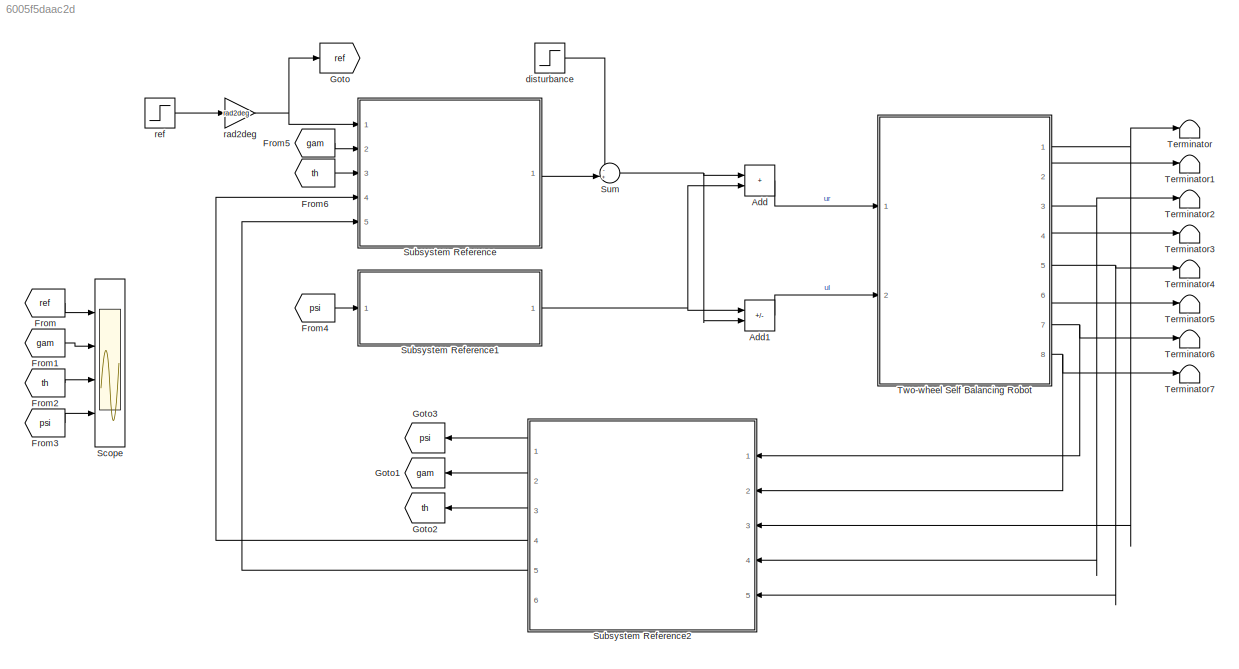
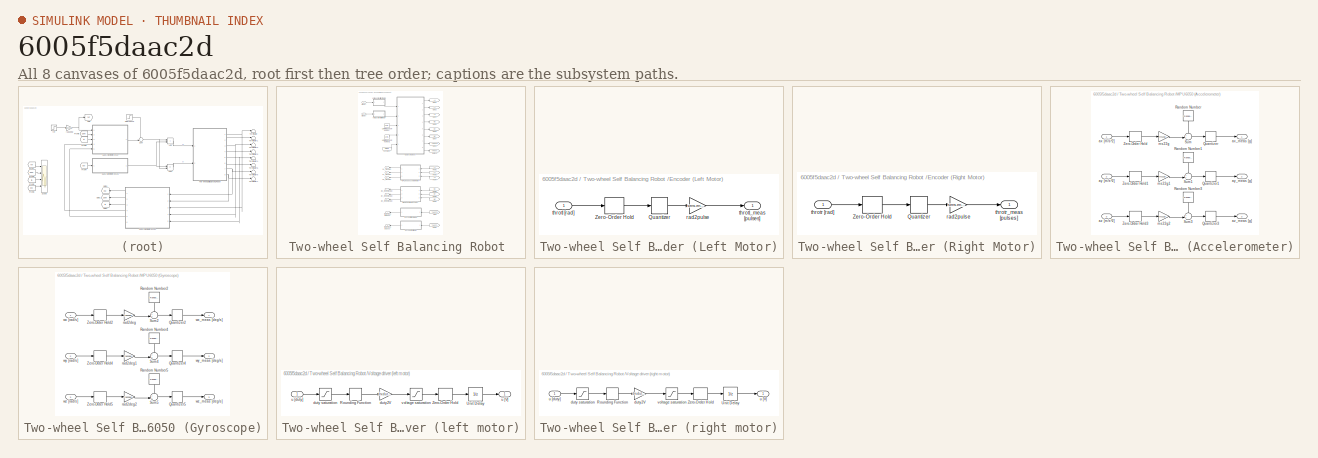
[diagram: thumbnail index - all 8 canvases of the model, root first then tree order]
MODEL slx_6005f5daac2d
KIND model
CONFIG AbsTol = auto
CONFIG EnableMultiTasking = off
CONFIG FixedStep = auto
CONFIG MaxStep = 0.001
CONFIG MinStep = auto
CONFIG RelTol = 1e-3
CONFIG SampleTimeConstraint = Unconstrained
CONFIG SolverName = ode45
CONFIG StartTime = 0.0
CONFIG StopTime = 20
BLOCK [Sum] Add
  IconShape = rectangular
  Ports = [2, 1]
BLOCK [Sum] Add1
  IconShape = rectangular
  Inputs = -+
  Ports = [2, 1]
BLOCK [From] From
  GotoTag = ref
BLOCK [From] From1
  GotoTag = gam
BLOCK [From] From2
  GotoTag = th
BLOCK [From] From3
  GotoTag = psi
BLOCK [From] From4
  GotoTag = psi
BLOCK [From] From5
  GotoTag = gam
BLOCK [From] From6
  GotoTag = th
BLOCK [Goto] Goto
  GotoTag = ref
BLOCK [Goto] Goto1
  GotoTag = gam
BLOCK [Goto] Goto2
  GotoTag = th
BLOCK [Goto] Goto3
  GotoTag = psi
BLOCK [Scope] Scope
  Floating = off
  NumInputPorts = 4
  Ports = [4]
  ScopeSpecificationString = Simulink.scopes.TimeScopeBlockCfg('CurrentConfiguration', extmgr.ConfigurationSet(extmgr.Configuration('Core','General UI',true),extmgr.Configuration('Core','Source UI',true),extmgr.Configuration('Sources','WiredSimulink',true),extmgr.Configuration('Visuals','Time Domain',true,'SerializedDisplays',{struct('MinYLimReal','-310.97418','MaxYLimReal','349.83777','YLabelReal','','MinYLimMag',' 0.00000',...<+1765ch>
BLOCK [SubSystem] Subsystem Reference
  Ports = [5, 1]
  ReferencedSubsystem = StateSpaceControllerRobust_SubSystem
  RequestExecContextInheritance = off
BLOCK [SubSystem] Subsystem Reference1
  Ports = [1, 1]
  ReferencedSubsystem = YawController_SubSystem
  RequestExecContextInheritance = off
BLOCK [SubSystem] Subsystem Reference2
  NameLocation = top
  Ports = [5, 6]
  ReferencedSubsystem = YawStateObserver_SubSystem
  RequestExecContextInheritance = off
BLOCK [Sum] Sum
  Inputs = -+|
  Ports = [2, 1]
BLOCK [Terminator] Terminator
BLOCK [Terminator] Terminator1
BLOCK [Terminator] Terminator2
BLOCK [Terminator] Terminator3
BLOCK [Terminator] Terminator4
BLOCK [Terminator] Terminator5
BLOCK [Terminator] Terminator6
BLOCK [Terminator] Terminator7
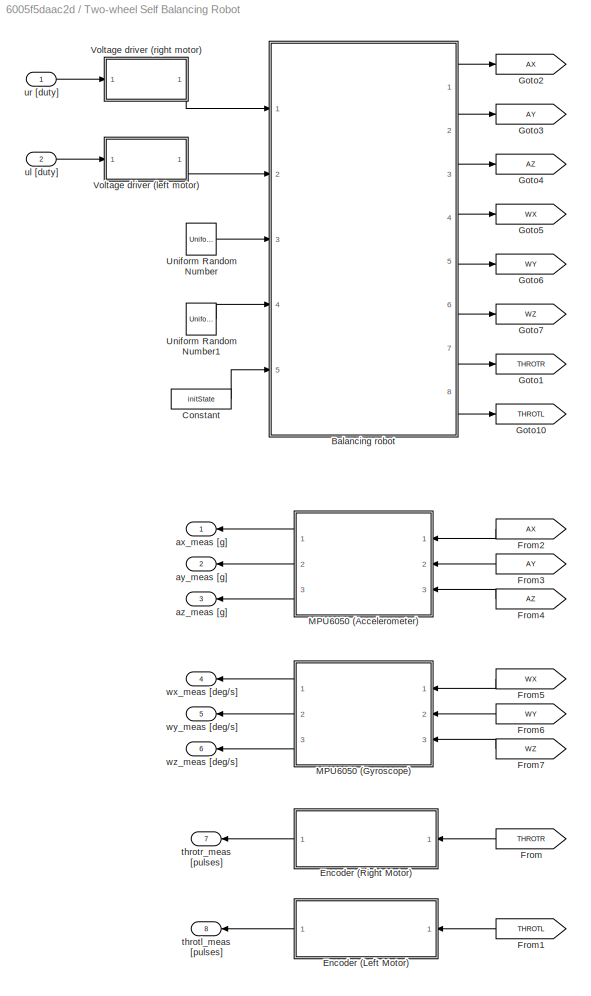
BLOCK [SubSystem] Two-wheel Self Balancing Robot 
  Ports = [2, 8]
  RequestExecContextInheritance = off
BLOCK [ModelReference] Two-wheel Self Balancing Robot /Balancing robot
  CopyOfModelProtected = on
  ModelNameDialog = balrob3d_win64.slxp
  ModelReferenceVersion = 1.741
  Ports = [5, 8]
BLOCK [Constant] Two-wheel Self Balancing Robot /Constant
  Value = initState
BLOCK [SubSystem] Two-wheel Self Balancing Robot /Encoder (Left Motor)
  Ports = [1, 1]
  RequestExecContextInheritance = off
BLOCK [Quantizer] Two-wheel Self Balancing Robot /Encoder (Left Motor)/Quantizer
  QuantizationInterval = sens.enc.pulse2rad
BLOCK [ZeroOrderHold] Two-wheel Self Balancing Robot /Encoder (Left Motor)/Zero-Order Hold
  SampleTime = Ts
BLOCK [Gain] Two-wheel Self Balancing Robot /Encoder (Left Motor)/rad2pulse
  Gain = sens.enc.rad2pulse
BLOCK [Inport] Two-wheel Self Balancing Robot /Encoder (Left Motor)/throtl [rad]
BLOCK [Outport] Two-wheel Self Balancing Robot /Encoder (Left Motor)/throtl_meas [pulses]
BLOCK [SubSystem] Two-wheel Self Balancing Robot /Encoder (Right Motor)
  Ports = [1, 1]
  RequestExecContextInheritance = off
BLOCK [Quantizer] Two-wheel Self Balancing Robot /Encoder (Right Motor)/Quantizer
  QuantizationInterval = sens.enc.pulse2rad
BLOCK [ZeroOrderHold] Two-wheel Self Balancing Robot /Encoder (Right Motor)/Zero-Order Hold
  SampleTime = Ts
BLOCK [Gain] Two-wheel Self Balancing Robot /Encoder (Right Motor)/rad2pulse
  Gain = sens.enc.rad2pulse
BLOCK [Inport] Two-wheel Self Balancing Robot /Encoder (Right Motor)/throtr [rad]
BLOCK [Outport] Two-wheel Self Balancing Robot /Encoder (Right Motor)/throtr_meas [pulses]
BLOCK [From] Two-wheel Self Balancing Robot /From
  GotoTag = THROTR
  NameLocation = top
BLOCK [From] Two-wheel Self Balancing Robot /From1
  GotoTag = THROTL
  NameLocation = top
BLOCK [From] Two-wheel Self Balancing Robot /From2
  GotoTag = AX
  NameLocation = top
BLOCK [From] Two-wheel Self Balancing Robot /From3
  GotoTag = AY
  NameLocation = top
BLOCK [From] Two-wheel Self Balancing Robot /From4
  GotoTag = AZ
  NameLocation = top
BLOCK [From] Two-wheel Self Balancing Robot /From5
  GotoTag = WX
  NameLocation = top
BLOCK [From] Two-wheel Self Balancing Robot /From6
  GotoTag = WY
  NameLocation = top
BLOCK [From] Two-wheel Self Balancing Robot /From7
  GotoTag = WZ
  NameLocation = top
BLOCK [Goto] Two-wheel Self Balancing Robot /Goto1
  GotoTag = THROTR
BLOCK [Goto] Two-wheel Self Balancing Robot /Goto10
  GotoTag = THROTL
BLOCK [Goto] Two-wheel Self Balancing Robot /Goto2
  GotoTag = AX
BLOCK [Goto] Two-wheel Self Balancing Robot /Goto3
  GotoTag = AY
BLOCK [Goto] Two-wheel Self Balancing Robot /Goto4
  GotoTag = AZ
BLOCK [Goto] Two-wheel Self Balancing Robot /Goto5
  GotoTag = WX
BLOCK [Goto] Two-wheel Self Balancing Robot /Goto6
  GotoTag = WY
BLOCK [Goto] Two-wheel Self Balancing Robot /Goto7
  GotoTag = WZ
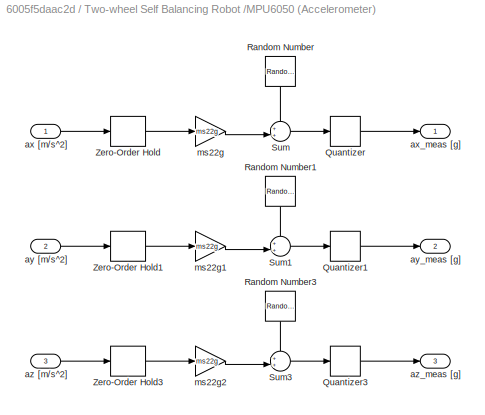
BLOCK [SubSystem] Two-wheel Self Balancing Robot /MPU6050 (Accelerometer)
  Ports = [3, 3]
  RequestExecContextInheritance = off
BLOCK [Quantizer] Two-wheel Self Balancing Robot /MPU6050 (Accelerometer)/Quantizer
  QuantizationInterval = sens.mpu.acc.LSB2g
BLOCK [Quantizer] Two-wheel Self Balancing Robot /MPU6050 (Accelerometer)/Quantizer1
  QuantizationInterval = sens.mpu.acc.LSB2g
BLOCK [Quantizer] Two-wheel Self Balancing Robot /MPU6050 (Accelerometer)/Quantizer3
  QuantizationInterval = sens.mpu.acc.LSB2g
BLOCK [RandomNumber] Two-wheel Self Balancing Robot /MPU6050 (Accelerometer)/Random Number
  NameLocation = left
  SampleTime = Ts
  Seed = 1
  Variance = sens.mpu.acc.noisevar
BLOCK [RandomNumber] Two-wheel Self Balancing Robot /MPU6050 (Accelerometer)/Random Number1
  NameLocation = left
  SampleTime = Ts
  Seed = 10
  Variance = sens.mpu.acc.noisevar
BLOCK [RandomNumber] Two-wheel Self Balancing Robot /MPU6050 (Accelerometer)/Random Number3
  NameLocation = left
  SampleTime = Ts
  Seed = 100
  Variance = sens.mpu.acc.noisevar
BLOCK [Sum] Two-wheel Self Balancing Robot /MPU6050 (Accelerometer)/Sum
  Inputs = ++|
  Ports = [2, 1]
BLOCK [Sum] Two-wheel Self Balancing Robot /MPU6050 (Accelerometer)/Sum1
  Inputs = ++|
  Ports = [2, 1]
BLOCK [Sum] Two-wheel Self Balancing Robot /MPU6050 (Accelerometer)/Sum3
  Inputs = ++|
  Ports = [2, 1]
BLOCK [ZeroOrderHold] Two-wheel Self Balancing Robot /MPU6050 (Accelerometer)/Zero-Order Hold
  SampleTime = Ts
BLOCK [ZeroOrderHold] Two-wheel Self Balancing Robot /MPU6050 (Accelerometer)/Zero-Order Hold1
  SampleTime = Ts
BLOCK [ZeroOrderHold] Two-wheel Self Balancing Robot /MPU6050 (Accelerometer)/Zero-Order Hold3
  SampleTime = Ts
BLOCK [Inport] Two-wheel Self Balancing Robot /MPU6050 (Accelerometer)/ax [m//s^2]
BLOCK [Outport] Two-wheel Self Balancing Robot /MPU6050 (Accelerometer)/ax_meas [g]
BLOCK [Inport] Two-wheel Self Balancing Robot /MPU6050 (Accelerometer)/ay [m//s^2]
  Port = 2
BLOCK [Outport] Two-wheel Self Balancing Robot /MPU6050 (Accelerometer)/ay_meas [g]
  Port = 2
BLOCK [Inport] Two-wheel Self Balancing Robot /MPU6050 (Accelerometer)/az [m//s^2]
  Port = 3
BLOCK [Outport] Two-wheel Self Balancing Robot /MPU6050 (Accelerometer)/az_meas [g]
  Port = 3
BLOCK [Gain] Two-wheel Self Balancing Robot /MPU6050 (Accelerometer)/ms22g
  Gain = ms22g
BLOCK [Gain] Two-wheel Self Balancing Robot /MPU6050 (Accelerometer)/ms22g1
  Gain = ms22g
BLOCK [Gain] Two-wheel Self Balancing Robot /MPU6050 (Accelerometer)/ms22g2
  Gain = ms22g
BLOCK [SubSystem] Two-wheel Self Balancing Robot /MPU6050 (Gyroscope)
  Ports = [3, 3]
  RequestExecContextInheritance = off
BLOCK [Quantizer] Two-wheel Self Balancing Robot /MPU6050 (Gyroscope)/Quantizer2
  QuantizationInterval = sens.mpu.gyro.LSB2degs
BLOCK [Quantizer] Two-wheel Self Balancing Robot /MPU6050 (Gyroscope)/Quantizer4
  QuantizationInterval = sens.mpu.gyro.LSB2degs
BLOCK [Quantizer] Two-wheel Self Balancing Robot /MPU6050 (Gyroscope)/Quantizer5
  QuantizationInterval = sens.mpu.gyro.LSB2degs
BLOCK [RandomNumber] Two-wheel Self Balancing Robot /MPU6050 (Gyroscope)/Random Number2
  NameLocation = left
  SampleTime = Ts
  Seed = 2
  Variance = sens.mpu.gyro.noisevar
BLOCK [RandomNumber] Two-wheel Self Balancing Robot /MPU6050 (Gyroscope)/Random Number4
  NameLocation = left
  SampleTime = Ts
  Seed = 20
  Variance = sens.mpu.gyro.noisevar
BLOCK [RandomNumber] Two-wheel Self Balancing Robot /MPU6050 (Gyroscope)/Random Number5
  NameLocation = left
  SampleTime = Ts
  Seed = 200
  Variance = sens.mpu.gyro.noisevar
BLOCK [Sum] Two-wheel Self Balancing Robot /MPU6050 (Gyroscope)/Sum2
  Inputs = ++|
  Ports = [2, 1]
BLOCK [Sum] Two-wheel Self Balancing Robot /MPU6050 (Gyroscope)/Sum4
  Inputs = ++|
  Ports = [2, 1]
BLOCK [Sum] Two-wheel Self Balancing Robot /MPU6050 (Gyroscope)/Sum5
  Inputs = ++|
  Ports = [2, 1]
BLOCK [ZeroOrderHold] Two-wheel Self Balancing Robot /MPU6050 (Gyroscope)/Zero-Order Hold2
  SampleTime = Ts
BLOCK [ZeroOrderHold] Two-wheel Self Balancing Robot /MPU6050 (Gyroscope)/Zero-Order Hold4
  SampleTime = Ts
BLOCK [ZeroOrderHold] Two-wheel Self Balancing Robot /MPU6050 (Gyroscope)/Zero-Order Hold5
  SampleTime = Ts
BLOCK [Gain] Two-wheel Self Balancing Robot /MPU6050 (Gyroscope)/rad2deg
  Gain = rad2deg
BLOCK [Gain] Two-wheel Self Balancing Robot /MPU6050 (Gyroscope)/rad2deg1
  Gain = rad2deg
BLOCK [Gain] Two-wheel Self Balancing Robot /MPU6050 (Gyroscope)/rad2deg2
  Gain = rad2deg
BLOCK [Inport] Two-wheel Self Balancing Robot /MPU6050 (Gyroscope)/wx [rad//s]
BLOCK [Outport] Two-wheel Self Balancing Robot /MPU6050 (Gyroscope)/wx_meas [deg//s]
BLOCK [Inport] Two-wheel Self Balancing Robot /MPU6050 (Gyroscope)/wy [rad//s]
  Port = 2
BLOCK [Outport] Two-wheel Self Balancing Robot /MPU6050 (Gyroscope)/wy_meas [deg//s]
  Port = 2
BLOCK [Inport] Two-wheel Self Balancing Robot /MPU6050 (Gyroscope)/wz [rad//s]
  Port = 3
BLOCK [Outport] Two-wheel Self Balancing Robot /MPU6050 (Gyroscope)/wz_meas [deg//s]
  Port = 3
BLOCK [UniformRandomNumber] Two-wheel Self Balancing Robot /Uniform Random Number
  Maximum = 1.3
  Minimum = 0.7
  SampleTime = 1
BLOCK [UniformRandomNumber] Two-wheel Self Balancing Robot /Uniform Random Number1
  Maximum = 1.3
  Minimum = 0.7
  SampleTime = 1
  Seed = 10
BLOCK [SubSystem] Two-wheel Self Balancing Robot /Voltage driver (left motor)
  Ports = [1, 1]
  RequestExecContextInheritance = off
BLOCK [Rounding] Two-wheel Self Balancing Robot /Voltage driver (left motor)/Rounding Function
  Operator = fix
BLOCK [UnitDelay] Two-wheel Self Balancing Robot /Voltage driver (left motor)/Unit Delay
  HasFrameUpgradeWarning = on
  SampleTime = 1/drv.pwm.Fs
BLOCK [ZeroOrderHold] Two-wheel Self Balancing Robot /Voltage driver (left motor)/Zero-Order Hold
  SampleTime = Ts
BLOCK [Saturate] Two-wheel Self Balancing Robot /Voltage driver (left motor)/duty saturation
  LowerLimit = -255
  UpperLimit = 255
BLOCK [Gain] Two-wheel Self Balancing Robot /Voltage driver (left motor)/duty2V
  Gain = drv.duty2V
BLOCK [Outport] Two-wheel Self Balancing Robot /Voltage driver (left motor)/u [V]
BLOCK [Inport] Two-wheel Self Balancing Robot /Voltage driver (left motor)/u [duty]
BLOCK [Saturate] Two-wheel Self Balancing Robot /Voltage driver (left motor)/voltage saturation
  LowerLimit = -drv.Vbus
  UpperLimit = drv.Vbus
BLOCK [SubSystem] Two-wheel Self Balancing Robot /Voltage driver (right motor)
  Ports = [1, 1]
  RequestExecContextInheritance = off
BLOCK [Rounding] Two-wheel Self Balancing Robot /Voltage driver (right motor)/Rounding Function
  Operator = fix
BLOCK [UnitDelay] Two-wheel Self Balancing Robot /Voltage driver (right motor)/Unit Delay
  HasFrameUpgradeWarning = on
  SampleTime = 1/drv.pwm.Fs
BLOCK [ZeroOrderHold] Two-wheel Self Balancing Robot /Voltage driver (right motor)/Zero-Order Hold
  SampleTime = Ts
BLOCK [Saturate] Two-wheel Self Balancing Robot /Voltage driver (right motor)/duty saturation
  LowerLimit = -255
  UpperLimit = 255
BLOCK [Gain] Two-wheel Self Balancing Robot /Voltage driver (right motor)/duty2V
  Gain = drv.duty2V
BLOCK [Outport] Two-wheel Self Balancing Robot /Voltage driver (right motor)/u [V]
BLOCK [Inport] Two-wheel Self Balancing Robot /Voltage driver (right motor)/u [duty]
BLOCK [Saturate] Two-wheel Self Balancing Robot /Voltage driver (right motor)/voltage saturation
  LowerLimit = -drv.Vbus
  UpperLimit = drv.Vbus
BLOCK [Outport] Two-wheel Self Balancing Robot /ax_meas [g]
BLOCK [Outport] Two-wheel Self Balancing Robot /ay_meas [g]
  Port = 2
BLOCK [Outport] Two-wheel Self Balancing Robot /az_meas [g]
  Port = 3
BLOCK [Outport] Two-wheel Self Balancing Robot /throtl_meas [pulses]
  Port = 8
BLOCK [Outport] Two-wheel Self Balancing Robot /throtr_meas [pulses]
  Port = 7
BLOCK [Inport] Two-wheel Self Balancing Robot /ul [duty]
  Port = 2
BLOCK [Inport] Two-wheel Self Balancing Robot /ur [duty]
BLOCK [Outport] Two-wheel Self Balancing Robot /wx_meas [deg//s]
  Port = 4
BLOCK [Outport] Two-wheel Self Balancing Robot /wy_meas [deg//s]
  Port = 5
BLOCK [Outport] Two-wheel Self Balancing Robot /wz_meas [deg//s]
  Port = 6
BLOCK [Step] disturbance
  After = disturbance
  SampleTime = Ts
  Time = 10
BLOCK [Gain] rad2deg
  Gain = rad2deg
BLOCK [Step] ref
  After = ref
  SampleTime = Ts
  Time = 0
LINE Add1:1 -> Two-wheel Self Balancing Robot :2
LINE Add:1 -> Two-wheel Self Balancing Robot :1
LINE From1:1 -> Scope:2
LINE From2:1 -> Scope:3
LINE From3:1 -> Scope:4
LINE From4:1 -> Subsystem Reference1:1
LINE From5:1 -> Subsystem Reference:2
LINE From6:1 -> Subsystem Reference:3
LINE From:1 -> Scope:1
NET Subsystem Reference1:1 -> Add1:1, Add:2
LINE Subsystem Reference2:1 -> Goto3:1
LINE Subsystem Reference2:2 -> Goto1:1
LINE Subsystem Reference2:3 -> Goto2:1
LINE Subsystem Reference2:4 -> Subsystem Reference:4
LINE Subsystem Reference2:5 -> Subsystem Reference:5
LINE Subsystem Reference:1 -> Sum:2
NET Sum:1 -> Add1:2, Add:1
LINE Two-wheel Self Balancing Robot /Balancing robot:1 -> Two-wheel Self Balancing Robot /Goto2:1
LINE Two-wheel Self Balancing Robot /Balancing robot:2 -> Two-wheel Self Balancing Robot /Goto3:1
LINE Two-wheel Self Balancing Robot /Balancing robot:3 -> Two-wheel Self Balancing Robot /Goto4:1
LINE Two-wheel Self Balancing Robot /Balancing robot:4 -> Two-wheel Self Balancing Robot /Goto5:1
LINE Two-wheel Self Balancing Robot /Balancing robot:5 -> Two-wheel Self Balancing Robot /Goto6:1
LINE Two-wheel Self Balancing Robot /Balancing robot:6 -> Two-wheel Self Balancing Robot /Goto7:1
LINE Two-wheel Self Balancing Robot /Balancing robot:7 -> Two-wheel Self Balancing Robot /Goto1:1
LINE Two-wheel Self Balancing Robot /Balancing robot:8 -> Two-wheel Self Balancing Robot /Goto10:1
LINE Two-wheel Self Balancing Robot /Constant:1 -> Two-wheel Self Balancing Robot /Balancing robot:5
LINE Two-wheel Self Balancing Robot /Encoder (Left Motor)/Quantizer:1 -> Two-wheel Self Balancing Robot /Encoder (Left Motor)/rad2pulse:1
LINE Two-wheel Self Balancing Robot /Encoder (Left Motor)/Zero-Order Hold:1 -> Two-wheel Self Balancing Robot /Encoder (Left Motor)/Quantizer:1
LINE Two-wheel Self Balancing Robot /Encoder (Left Motor)/rad2pulse:1 -> Two-wheel Self Balancing Robot /Encoder (Left Motor)/throtl_meas [pulses]:1
LINE Two-wheel Self Balancing Robot /Encoder (Left Motor)/throtl [rad]:1 -> Two-wheel Self Balancing Robot /Encoder (Left Motor)/Zero-Order Hold:1
LINE Two-wheel Self Balancing Robot /Encoder (Left Motor):1 -> Two-wheel Self Balancing Robot /throtl_meas [pulses]:1
LINE Two-wheel Self Balancing Robot /Encoder (Right Motor)/Quantizer:1 -> Two-wheel Self Balancing Robot /Encoder (Right Motor)/rad2pulse:1
LINE Two-wheel Self Balancing Robot /Encoder (Right Motor)/Zero-Order Hold:1 -> Two-wheel Self Balancing Robot /Encoder (Right Motor)/Quantizer:1
LINE Two-wheel Self Balancing Robot /Encoder (Right Motor)/rad2pulse:1 -> Two-wheel Self Balancing Robot /Encoder (Right Motor)/throtr_meas [pulses]:1
LINE Two-wheel Self Balancing Robot /Encoder (Right Motor)/throtr [rad]:1 -> Two-wheel Self Balancing Robot /Encoder (Right Motor)/Zero-Order Hold:1
LINE Two-wheel Self Balancing Robot /Encoder (Right Motor):1 -> Two-wheel Self Balancing Robot /throtr_meas [pulses]:1
LINE Two-wheel Self Balancing Robot /From1:1 -> Two-wheel Self Balancing Robot /Encoder (Left Motor):1
LINE Two-wheel Self Balancing Robot /From2:1 -> Two-wheel Self Balancing Robot /MPU6050 (Accelerometer):1
LINE Two-wheel Self Balancing Robot /From3:1 -> Two-wheel Self Balancing Robot /MPU6050 (Accelerometer):2
LINE Two-wheel Self Balancing Robot /From4:1 -> Two-wheel Self Balancing Robot /MPU6050 (Accelerometer):3
LINE Two-wheel Self Balancing Robot /From5:1 -> Two-wheel Self Balancing Robot /MPU6050 (Gyroscope):1
LINE Two-wheel Self Balancing Robot /From6:1 -> Two-wheel Self Balancing Robot /MPU6050 (Gyroscope):2
LINE Two-wheel Self Balancing Robot /From7:1 -> Two-wheel Self Balancing Robot /MPU6050 (Gyroscope):3
LINE Two-wheel Self Balancing Robot /From:1 -> Two-wheel Self Balancing Robot /Encoder (Right Motor):1
LINE Two-wheel Self Balancing Robot /MPU6050 (Accelerometer)/Quantizer1:1 -> Two-wheel Self Balancing Robot /MPU6050 (Accelerometer)/ay_meas [g]:1
LINE Two-wheel Self Balancing Robot /MPU6050 (Accelerometer)/Quantizer3:1 -> Two-wheel Self Balancing Robot /MPU6050 (Accelerometer)/az_meas [g]:1
LINE Two-wheel Self Balancing Robot /MPU6050 (Accelerometer)/Quantizer:1 -> Two-wheel Self Balancing Robot /MPU6050 (Accelerometer)/ax_meas [g]:1
LINE Two-wheel Self Balancing Robot /MPU6050 (Accelerometer)/Random Number1:1 -> Two-wheel Self Balancing Robot /MPU6050 (Accelerometer)/Sum1:1
LINE Two-wheel Self Balancing Robot /MPU6050 (Accelerometer)/Random Number3:1 -> Two-wheel Self Balancing Robot /MPU6050 (Accelerometer)/Sum3:1
LINE Two-wheel Self Balancing Robot /MPU6050 (Accelerometer)/Random Number:1 -> Two-wheel Self Balancing Robot /MPU6050 (Accelerometer)/Sum:1
LINE Two-wheel Self Balancing Robot /MPU6050 (Accelerometer)/Sum1:1 -> Two-wheel Self Balancing Robot /MPU6050 (Accelerometer)/Quantizer1:1
LINE Two-wheel Self Balancing Robot /MPU6050 (Accelerometer)/Sum3:1 -> Two-wheel Self Balancing Robot /MPU6050 (Accelerometer)/Quantizer3:1
LINE Two-wheel Self Balancing Robot /MPU6050 (Accelerometer)/Sum:1 -> Two-wheel Self Balancing Robot /MPU6050 (Accelerometer)/Quantizer:1
LINE Two-wheel Self Balancing Robot /MPU6050 (Accelerometer)/Zero-Order Hold1:1 -> Two-wheel Self Balancing Robot /MPU6050 (Accelerometer)/ms22g1:1
LINE Two-wheel Self Balancing Robot /MPU6050 (Accelerometer)/Zero-Order Hold3:1 -> Two-wheel Self Balancing Robot /MPU6050 (Accelerometer)/ms22g2:1
LINE Two-wheel Self Balancing Robot /MPU6050 (Accelerometer)/Zero-Order Hold:1 -> Two-wheel Self Balancing Robot /MPU6050 (Accelerometer)/ms22g:1
LINE Two-wheel Self Balancing Robot /MPU6050 (Accelerometer)/ax [m//s^2]:1 -> Two-wheel Self Balancing Robot /MPU6050 (Accelerometer)/Zero-Order Hold:1
LINE Two-wheel Self Balancing Robot /MPU6050 (Accelerometer)/ay [m//s^2]:1 -> Two-wheel Self Balancing Robot /MPU6050 (Accelerometer)/Zero-Order Hold1:1
LINE Two-wheel Self Balancing Robot /MPU6050 (Accelerometer)/az [m//s^2]:1 -> Two-wheel Self Balancing Robot /MPU6050 (Accelerometer)/Zero-Order Hold3:1
LINE Two-wheel Self Balancing Robot /MPU6050 (Accelerometer)/ms22g1:1 -> Two-wheel Self Balancing Robot /MPU6050 (Accelerometer)/Sum1:2
LINE Two-wheel Self Balancing Robot /MPU6050 (Accelerometer)/ms22g2:1 -> Two-wheel Self Balancing Robot /MPU6050 (Accelerometer)/Sum3:2
LINE Two-wheel Self Balancing Robot /MPU6050 (Accelerometer)/ms22g:1 -> Two-wheel Self Balancing Robot /MPU6050 (Accelerometer)/Sum:2
LINE Two-wheel Self Balancing Robot /MPU6050 (Accelerometer):1 -> Two-wheel Self Balancing Robot /ax_meas [g]:1
LINE Two-wheel Self Balancing Robot /MPU6050 (Accelerometer):2 -> Two-wheel Self Balancing Robot /ay_meas [g]:1
LINE Two-wheel Self Balancing Robot /MPU6050 (Accelerometer):3 -> Two-wheel Self Balancing Robot /az_meas [g]:1
LINE Two-wheel Self Balancing Robot /MPU6050 (Gyroscope)/Quantizer2:1 -> Two-wheel Self Balancing Robot /MPU6050 (Gyroscope)/wx_meas [deg//s]:1
LINE Two-wheel Self Balancing Robot /MPU6050 (Gyroscope)/Quantizer4:1 -> Two-wheel Self Balancing Robot /MPU6050 (Gyroscope)/wy_meas [deg//s]:1
LINE Two-wheel Self Balancing Robot /MPU6050 (Gyroscope)/Quantizer5:1 -> Two-wheel Self Balancing Robot /MPU6050 (Gyroscope)/wz_meas [deg//s]:1
LINE Two-wheel Self Balancing Robot /MPU6050 (Gyroscope)/Random Number2:1 -> Two-wheel Self Balancing Robot /MPU6050 (Gyroscope)/Sum2:1
LINE Two-wheel Self Balancing Robot /MPU6050 (Gyroscope)/Random Number4:1 -> Two-wheel Self Balancing Robot /MPU6050 (Gyroscope)/Sum4:1
LINE Two-wheel Self Balancing Robot /MPU6050 (Gyroscope)/Random Number5:1 -> Two-wheel Self Balancing Robot /MPU6050 (Gyroscope)/Sum5:1
LINE Two-wheel Self Balancing Robot /MPU6050 (Gyroscope)/Sum2:1 -> Two-wheel Self Balancing Robot /MPU6050 (Gyroscope)/Quantizer2:1
LINE Two-wheel Self Balancing Robot /MPU6050 (Gyroscope)/Sum4:1 -> Two-wheel Self Balancing Robot /MPU6050 (Gyroscope)/Quantizer4:1
LINE Two-wheel Self Balancing Robot /MPU6050 (Gyroscope)/Sum5:1 -> Two-wheel Self Balancing Robot /MPU6050 (Gyroscope)/Quantizer5:1
LINE Two-wheel Self Balancing Robot /MPU6050 (Gyroscope)/Zero-Order Hold2:1 -> Two-wheel Self Balancing Robot /MPU6050 (Gyroscope)/rad2deg:1
LINE Two-wheel Self Balancing Robot /MPU6050 (Gyroscope)/Zero-Order Hold4:1 -> Two-wheel Self Balancing Robot /MPU6050 (Gyroscope)/rad2deg1:1
LINE Two-wheel Self Balancing Robot /MPU6050 (Gyroscope)/Zero-Order Hold5:1 -> Two-wheel Self Balancing Robot /MPU6050 (Gyroscope)/rad2deg2:1
LINE Two-wheel Self Balancing Robot /MPU6050 (Gyroscope)/rad2deg1:1 -> Two-wheel Self Balancing Robot /MPU6050 (Gyroscope)/Sum4:2
LINE Two-wheel Self Balancing Robot /MPU6050 (Gyroscope)/rad2deg2:1 -> Two-wheel Self Balancing Robot /MPU6050 (Gyroscope)/Sum5:2
LINE Two-wheel Self Balancing Robot /MPU6050 (Gyroscope)/rad2deg:1 -> Two-wheel Self Balancing Robot /MPU6050 (Gyroscope)/Sum2:2
LINE Two-wheel Self Balancing Robot /MPU6050 (Gyroscope)/wx [rad//s]:1 -> Two-wheel Self Balancing Robot /MPU6050 (Gyroscope)/Zero-Order Hold2:1
LINE Two-wheel Self Balancing Robot /MPU6050 (Gyroscope)/wy [rad//s]:1 -> Two-wheel Self Balancing Robot /MPU6050 (Gyroscope)/Zero-Order Hold4:1
LINE Two-wheel Self Balancing Robot /MPU6050 (Gyroscope)/wz [rad//s]:1 -> Two-wheel Self Balancing Robot /MPU6050 (Gyroscope)/Zero-Order Hold5:1
LINE Two-wheel Self Balancing Robot /MPU6050 (Gyroscope):1 -> Two-wheel Self Balancing Robot /wx_meas [deg//s]:1
LINE Two-wheel Self Balancing Robot /MPU6050 (Gyroscope):2 -> Two-wheel Self Balancing Robot /wy_meas [deg//s]:1
LINE Two-wheel Self Balancing Robot /MPU6050 (Gyroscope):3 -> Two-wheel Self Balancing Robot /wz_meas [deg//s]:1
LINE Two-wheel Self Balancing Robot /Uniform Random Number1:1 -> Two-wheel Self Balancing Robot /Balancing robot:4
LINE Two-wheel Self Balancing Robot /Uniform Random Number:1 -> Two-wheel Self Balancing Robot /Balancing robot:3
LINE Two-wheel Self Balancing Robot /Voltage driver (left motor)/Rounding Function:1 -> Two-wheel Self Balancing Robot /Voltage driver (left motor)/duty2V:1
LINE Two-wheel Self Balancing Robot /Voltage driver (left motor)/Unit Delay:1 -> Two-wheel Self Balancing Robot /Voltage driver (left motor)/u [V]:1
LINE Two-wheel Self Balancing Robot /Voltage driver (left motor)/Zero-Order Hold:1 -> Two-wheel Self Balancing Robot /Voltage driver (left motor)/Unit Delay:1
LINE Two-wheel Self Balancing Robot /Voltage driver (left motor)/duty saturation:1 -> Two-wheel Self Balancing Robot /Voltage driver (left motor)/Rounding Function:1
LINE Two-wheel Self Balancing Robot /Voltage driver (left motor)/duty2V:1 -> Two-wheel Self Balancing Robot /Voltage driver (left motor)/voltage saturation:1
LINE Two-wheel Self Balancing Robot /Voltage driver (left motor)/u [duty]:1 -> Two-wheel Self Balancing Robot /Voltage driver (left motor)/duty saturation:1
LINE Two-wheel Self Balancing Robot /Voltage driver (left motor)/voltage saturation:1 -> Two-wheel Self Balancing Robot /Voltage driver (left motor)/Zero-Order Hold:1
LINE Two-wheel Self Balancing Robot /Voltage driver (left motor):1 -> Two-wheel Self Balancing Robot /Balancing robot:2
LINE Two-wheel Self Balancing Robot /Voltage driver (right motor)/Rounding Function:1 -> Two-wheel Self Balancing Robot /Voltage driver (right motor)/duty2V:1
LINE Two-wheel Self Balancing Robot /Voltage driver (right motor)/Unit Delay:1 -> Two-wheel Self Balancing Robot /Voltage driver (right motor)/u [V]:1
LINE Two-wheel Self Balancing Robot /Voltage driver (right motor)/Zero-Order Hold:1 -> Two-wheel Self Balancing Robot /Voltage driver (right motor)/Unit Delay:1
LINE Two-wheel Self Balancing Robot /Voltage driver (right motor)/duty saturation:1 -> Two-wheel Self Balancing Robot /Voltage driver (right motor)/Rounding Function:1
LINE Two-wheel Self Balancing Robot /Voltage driver (right motor)/duty2V:1 -> Two-wheel Self Balancing Robot /Voltage driver (right motor)/voltage saturation:1
LINE Two-wheel Self Balancing Robot /Voltage driver (right motor)/u [duty]:1 -> Two-wheel Self Balancing Robot /Voltage driver (right motor)/duty saturation:1
LINE Two-wheel Self Balancing Robot /Voltage driver (right motor)/voltage saturation:1 -> Two-wheel Self Balancing Robot /Voltage driver (right motor)/Zero-Order Hold:1
LINE Two-wheel Self Balancing Robot /Voltage driver (right motor):1 -> Two-wheel Self Balancing Robot /Balancing robot:1
LINE Two-wheel Self Balancing Robot /ul [duty]:1 -> Two-wheel Self Balancing Robot /Voltage driver (left motor):1
LINE Two-wheel Self Balancing Robot /ur [duty]:1 -> Two-wheel Self Balancing Robot /Voltage driver (right motor):1
NET Two-wheel Self Balancing Robot :1 -> Subsystem Reference2:3, Terminator:1
LINE Two-wheel Self Balancing Robot :2 -> Terminator1:1
NET Two-wheel Self Balancing Robot :3 -> Subsystem Reference2:4, Terminator2:1
LINE Two-wheel Self Balancing Robot :4 -> Terminator3:1
NET Two-wheel Self Balancing Robot :5 -> Subsystem Reference2:5, Terminator4:1
LINE Two-wheel Self Balancing Robot :6 -> Terminator5:1
NET Two-wheel Self Balancing Robot :7 -> Subsystem Reference2:1, Terminator6:1
NET Two-wheel Self Balancing Robot :8 -> Subsystem Reference2:2, Terminator7:1
LINE disturbance:1 -> Sum:1
NET rad2deg:1 -> Goto:1, Subsystem Reference:1
LINE ref:1 -> rad2deg:1
note: NET lines group one-source signal fan-out (src -> all destinations, sorted); 1:1 wires keep LINE
